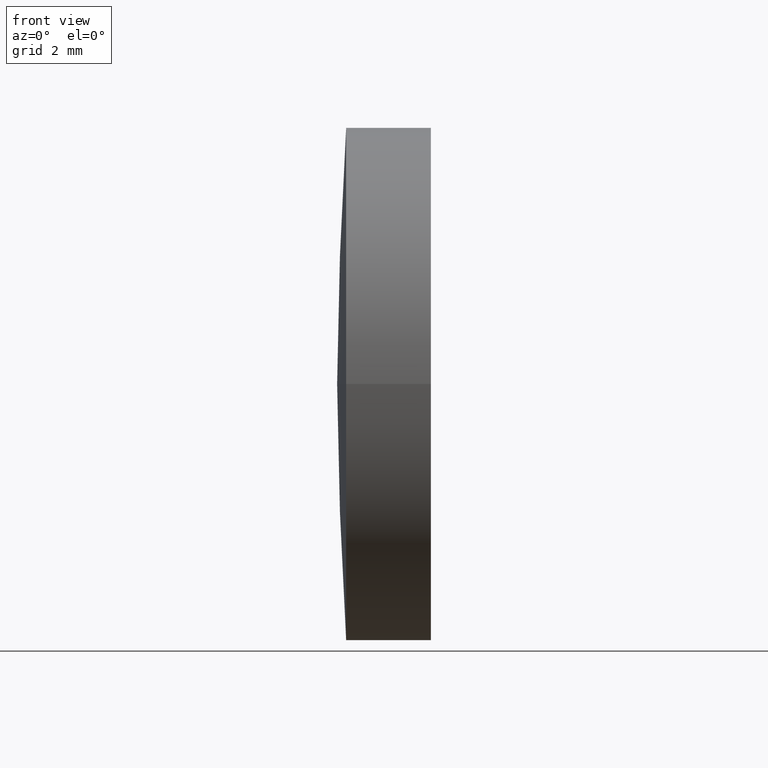
[diagram: clean part render]
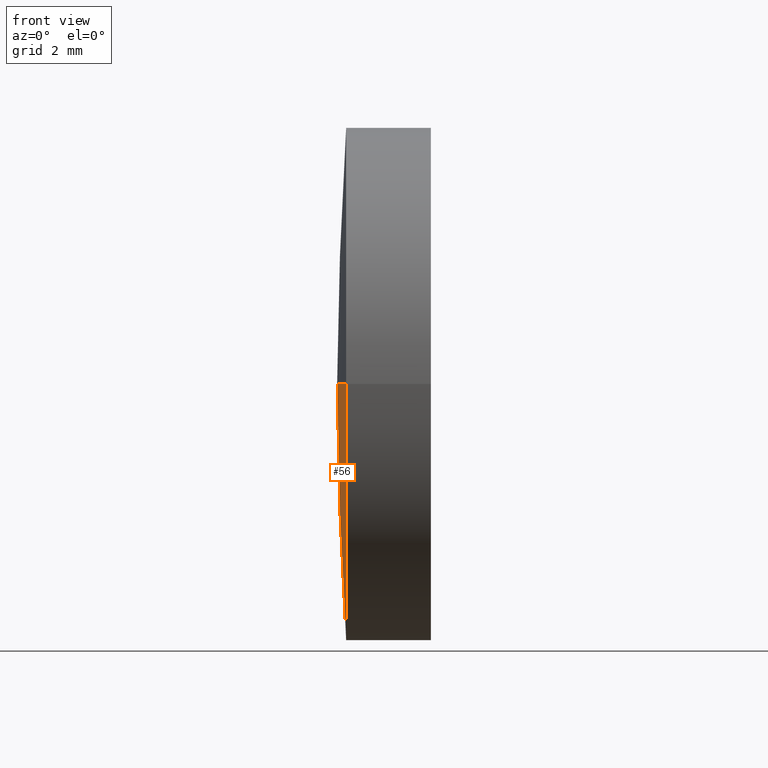
[diagram: same view with one face highlighted and labeled with its STEP entity id]
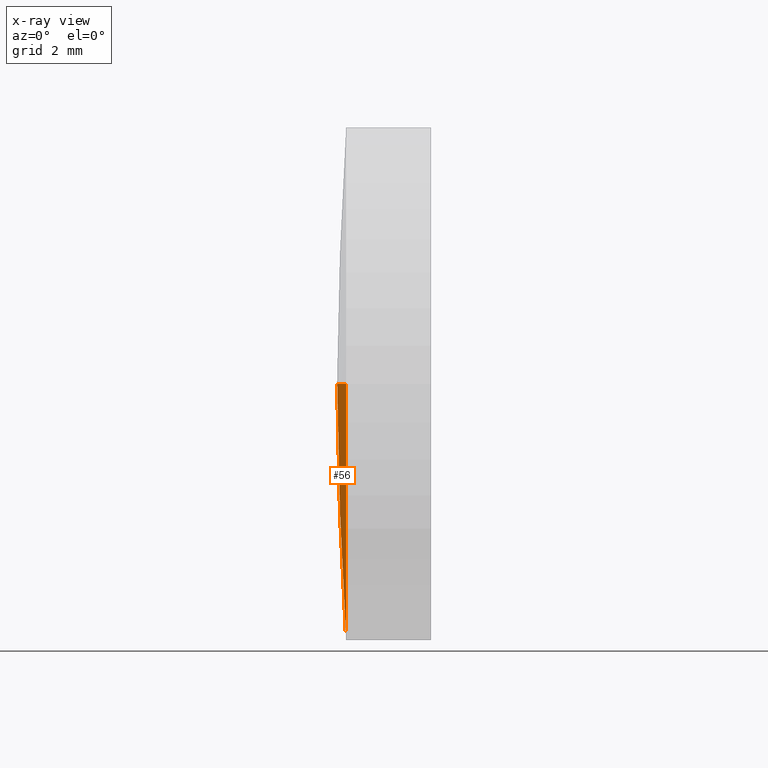
[diagram: x-ray of the same camera — body ghosted, the highlighted face saturated]
A machine part, front view. The second image highlights one B-rep face of the part: STEP entity #56.
The next image is the same camera in x-ray: the body ghosted, the highlighted face saturated — about 0% of this face is hidden behind the body in this view.
In plain terms, the highlighted spherical surface has radius 89 mm.
Its self-contained STEP definition (entity closure, byte-faithful):
#1 = ORIENTED_EDGE ( 'NONE', *, *, #104, .F. ) ;
#3 = VERTEX_POINT ( 'NONE', #95 ) ;
#16 = DIRECTION ( 'NONE',  ( -0.0000000000000000000, 0.0000000000000000000, 1.000000000000000000 ) ) ;
#24 = EDGE_LOOP ( 'NONE', ( #191, #38, #1 ) ) ;
#25 = EDGE_CURVE ( 'NONE', #154, #3, #52, .T. ) ;
#28 = DIRECTION ( 'NONE',  ( 1.110223024625159900E-015, -1.000000000000000000, 0.0000000000000000000 ) ) ;
#30 = CARTESIAN_POINT ( 'NONE',  ( 61.49363409550321100, 26.35842023547024800, -7.654042494670787000E-016 ) ) ;
#36 = VERTEX_POINT ( 'NONE', #145 ) ;
#37 = AXIS2_PLACEMENT_3D ( 'NONE', #132, #16, #45 ) ;
#38 = ORIENTED_EDGE ( 'NONE', *, *, #25, .T. ) ;
#42 = DIRECTION ( 'NONE',  ( -8.496118506040342700E-032, 1.224646799147353200E-016, -1.000000000000000000 ) ) ;
#45 = DIRECTION ( 'NONE',  ( 1.000000000000000000, 0.0000000000000000000, 0.0000000000000000000 ) ) ;
#52 = CIRCLE ( 'NONE', #100, 89.00000000000001400 ) ;
#53 = SPHERICAL_SURFACE ( 'NONE', #110, 89.00000000000001400 ) ;
#56 = ADVANCED_FACE ( 'NONE', ( #84 ), #53, .T. ) ;
#78 = CIRCLE ( 'NONE', #189, 6.249999999999981300 ) ;
#83 = DIRECTION ( 'NONE',  ( 0.0000000000000000000, 1.000000000000000000, 1.224646799147353000E-016 ) ) ;
#84 = FACE_OUTER_BOUND ( 'NONE', #24, .T. ) ;
#95 = CARTESIAN_POINT ( 'NONE',  ( 61.27391062131722100, 32.60842023547011300, 0.0000000000000000000 ) ) ;
#96 = EDGE_CURVE ( 'NONE', #36, #154, #78, .T. ) ;
#100 = AXIS2_PLACEMENT_3D ( 'NONE', #131, #42, #83 ) ;
#104 = EDGE_CURVE ( 'NONE', #36, #3, #169, .T. ) ;
#110 = AXIS2_PLACEMENT_3D ( 'NONE', #148, #180, #118 ) ;
#118 = DIRECTION ( 'NONE',  ( -6.237208003512114900E-016, 1.000000000000000000, 0.0000000000000000000 ) ) ;
#131 = CARTESIAN_POINT ( 'NONE',  ( 150.2739106213172400, 32.60842023547017000, 0.0000000000000000000 ) ) ;
#132 = CARTESIAN_POINT ( 'NONE',  ( 150.2739106213172400, 32.60842023547017000, 0.0000000000000000000 ) ) ;
#145 = CARTESIAN_POINT ( 'NONE',  ( 61.49363409550321100, 38.85842023547002100, 0.0000000000000000000 ) ) ;
#148 = CARTESIAN_POINT ( 'NONE',  ( 150.2739106213172400, 32.60842023547017000, 0.0000000000000000000 ) ) ;
#149 = DIRECTION ( 'NONE',  ( -1.000000000000000000, -6.937607244762875000E-016, -0.0000000000000000000 ) ) ;
#151 = CARTESIAN_POINT ( 'NONE',  ( 61.49363409550322500, 32.60842023547016300, 0.0000000000000000000 ) ) ;
#154 = VERTEX_POINT ( 'NONE', #30 ) ;
#169 = CIRCLE ( 'NONE', #37, 89.00000000000002800 ) ;
#180 = DIRECTION ( 'NONE',  ( -0.0000000000000000000, 0.0000000000000000000, -1.000000000000000000 ) ) ;
#189 = AXIS2_PLACEMENT_3D ( 'NONE', #151, #149, #28 ) ;
#191 = ORIENTED_EDGE ( 'NONE', *, *, #96, .T. ) ;